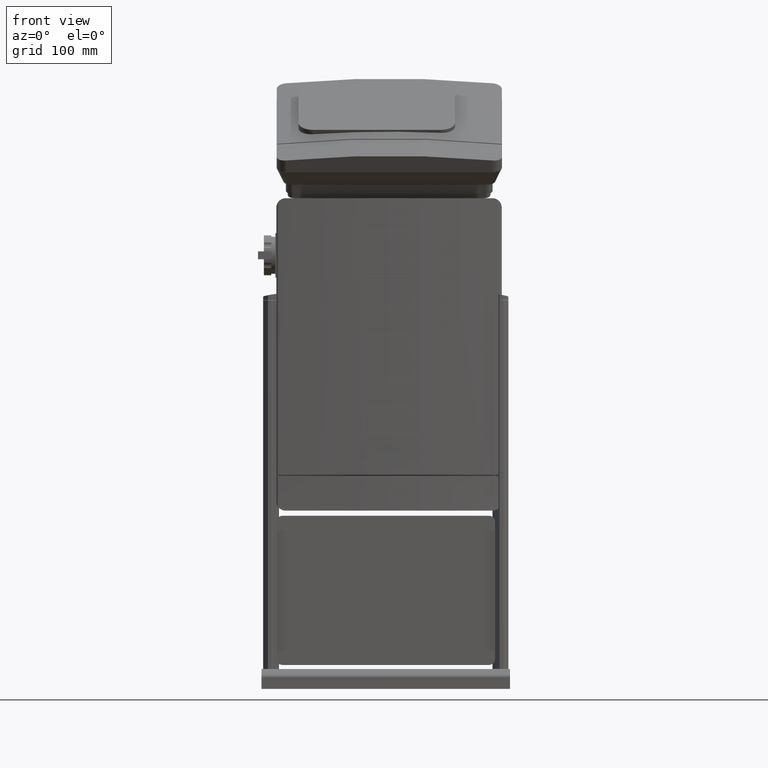
[diagram: clean part render]
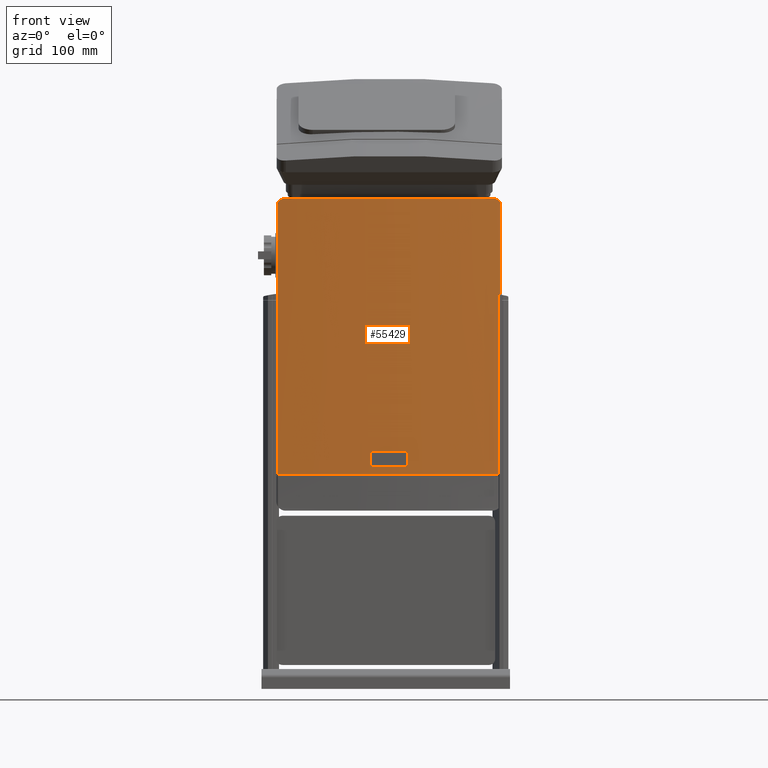
[diagram: same view with one face highlighted and labeled with its STEP entity id]
A machine part, front view. The second image highlights one B-rep face of the part: STEP entity #55429.
In plain terms, the highlighted cylindrical surface (partial cylindrical patch) has radius 1452.14 mm, axis along (0, 0, 1).
Its self-contained STEP definition (entity closure, byte-faithful):
#55105=CARTESIAN_POINT('',(167.38060922821586,-347.82095841177318,292.031503880537));
#55106=VERTEX_POINT('',#55105);
#55114=CARTESIAN_POINT('',(-167.39061529516783,-347.82095841173521,292.031503880537));
#55115=VERTEX_POINT('',#55114);
#55116=CARTESIAN_POINT('',(-0.005003033312448,1094.6376678086021,292.031503880537));
#55117=DIRECTION('',(0.0,0.0,1.0));
#55118=DIRECTION('',(-1.134249E-013,-1.0,0.0));
#55119=AXIS2_PLACEMENT_3D('',#55116,#55117,#55118);
#55120=CIRCLE('',#55119,1452.1380208333289);
#55121=EDGE_CURVE('',#55115,#55106,#55120,.T.);
#55268=CARTESIAN_POINT('',(-167.39061529516783,-347.82095841173521,703.17814941245285));
#55269=VERTEX_POINT('',#55268);
#55270=CARTESIAN_POINT('',(-167.39061529516783,-347.82095841173521,292.031503880537));
#55271=DIRECTION('',(0.0,0.0,1.0));
#55272=VECTOR('',#55271,411.14664553191585);
#55273=LINE('',#55270,#55272);
#55274=EDGE_CURVE('',#55115,#55269,#55273,.T.);
#55371=CARTESIAN_POINT('',(-0.005003033312448,1094.6376678086021,238.03150388053677));
#55372=DIRECTION('',(0.0,0.0,1.0));
#55373=DIRECTION('',(-1.134249E-013,-1.0,0.0));
#55374=AXIS2_PLACEMENT_3D('',#55371,#55372,#55373);
#55375=CYLINDRICAL_SURFACE('',#55374,1452.1380208333289);
#55376=ORIENTED_EDGE('',*,*,#55121,.T.);
#55377=CARTESIAN_POINT('',(167.38060922821586,-347.82095841177318,703.1781494129101));
#55378=VERTEX_POINT('',#55377);
#55379=CARTESIAN_POINT('',(167.38060922821586,-347.82095841177318,292.031503880537));
#55380=DIRECTION('',(0.0,0.0,1.0));
#55381=VECTOR('',#55380,411.1466455323731);
#55382=LINE('',#55379,#55381);
#55383=EDGE_CURVE('',#55106,#55378,#55382,.T.);
#55384=ORIENTED_EDGE('',*,*,#55383,.T.);
#55385=CARTESIAN_POINT('',(155.99499696668744,-349.09666770805995,709.03150388053666));
#55386=VERTEX_POINT('',#55385);
#55387=CARTESIAN_POINT('',(167.38060922821586,-347.82095841177318,703.1781494129101));
#55388=CARTESIAN_POINT('',(166.92918626040199,-347.87334238208803,703.80905042082202));
#55389=CARTESIAN_POINT('',(166.43138220255076,-347.93088864263916,704.39278794830784));
#55390=CARTESIAN_POINT('',(165.28404411475339,-348.06284005081932,705.54298080422029));
#55391=CARTESIAN_POINT('',(164.58054291496541,-348.14333552671098,706.12838284126076));
#55392=CARTESIAN_POINT('',(163.04899297702508,-348.31722403847346,707.1597132366461));
#55393=CARTESIAN_POINT('',(162.22098877885918,-348.41060369952095,707.6057099913379));
#55394=CARTESIAN_POINT('',(160.4941969588146,-348.60368176668783,708.32175718339829));
#55395=CARTESIAN_POINT('',(159.59405061134311,-348.7035262181106,708.59237239524532));
#55396=CARTESIAN_POINT('',(157.78424243564535,-348.90249938906334,708.94728422740218));
#55397=CARTESIAN_POINT('',(156.87456545741423,-349.00162758801991,709.03150388053666));
#55398=CARTESIAN_POINT('',(155.99499696668744,-349.09666770805995,709.03150388053666));
#55399=B_SPLINE_CURVE_WITH_KNOTS('',3,(#55387,#55388,#55389,#55390,#55391,#55392,#55393,#55394,#55395,#55396,#55397,#55398),.UNSPECIFIED.,.F.,.U.,(4,2,2,2,2,4),(50.620839894114866,52.856627320113461,55.510692162702959,58.164757005292458,60.818821847881956,63.472886690471455),.UNSPECIFIED.);
#55400=EDGE_CURVE('',#55378,#55386,#55399,.T.);
#55401=ORIENTED_EDGE('',*,*,#55400,.T.);
#55402=CARTESIAN_POINT('',(-156.00500303331245,-349.09666770805995,709.03150388053666));
#55403=VERTEX_POINT('',#55402);
#55404=CARTESIAN_POINT('',(-0.005003033312448,1094.6376678086021,709.03150388053677));
#55405=DIRECTION('',(0.0,0.0,-1.0));
#55406=DIRECTION('',(-1.134249E-013,-1.0,0.0));
#55407=AXIS2_PLACEMENT_3D('',#55404,#55405,#55406);
#55408=CIRCLE('',#55407,1452.1380208333289);
#55409=EDGE_CURVE('',#55386,#55403,#55408,.T.);
#55410=ORIENTED_EDGE('',*,*,#55409,.T.);
#55411=CARTESIAN_POINT('',(-156.00500303331245,-349.09666770805995,709.03150388053666));
#55412=CARTESIAN_POINT('',(-156.88457152403925,-349.00162758802014,709.03150388053666));
#55413=CARTESIAN_POINT('',(-157.79424850227014,-348.90249938906334,708.94728422740218));
#55414=CARTESIAN_POINT('',(-159.60405667796766,-348.7035262181106,708.59237239524532));
#55415=CARTESIAN_POINT('',(-160.50420302543961,-348.60368176668737,708.32175718339829));
#55416=CARTESIAN_POINT('',(-162.23099484548374,-348.41060369952049,707.6057099913379));
#55417=CARTESIAN_POINT('',(-163.05899904364964,-348.31722403847346,707.15971323664621));
#55418=CARTESIAN_POINT('',(-164.59054898158996,-348.14333552671098,706.12838284126087));
#55419=CARTESIAN_POINT('',(-165.29405018137794,-348.06284005081932,705.54298080422029));
#55420=CARTESIAN_POINT('',(-166.44138826930219,-347.93088864262461,704.39278794818074));
#55421=CARTESIAN_POINT('',(-166.93919232726711,-347.87334238206029,703.80905042053985));
#55422=CARTESIAN_POINT('',(-167.39061529516783,-347.82095841173521,703.17814941245285));
#55423=B_SPLINE_CURVE_WITH_KNOTS('',3,(#55411,#55412,#55413,#55414,#55415,#55416,#55417,#55418,#55419,#55420,#55421,#55422),.UNSPECIFIED.,.F.,.U.,(4,2,2,2,2,4),(21.151288591715407,23.805353434304877,26.459418276894347,29.113483119483817,31.767547962073291,34.003335388612157),.UNSPECIFIED.);
#55424=EDGE_CURVE('',#55403,#55269,#55423,.T.);
#55425=ORIENTED_EDGE('',*,*,#55424,.T.);
#55426=ORIENTED_EDGE('',*,*,#55274,.F.);
#55427=EDGE_LOOP('',(#55376,#55384,#55401,#55410,#55425,#55426));
#55428=FACE_OUTER_BOUND('',#55427,.T.);
#55429=ADVANCED_FACE('',(#55428),#55375,.T.);